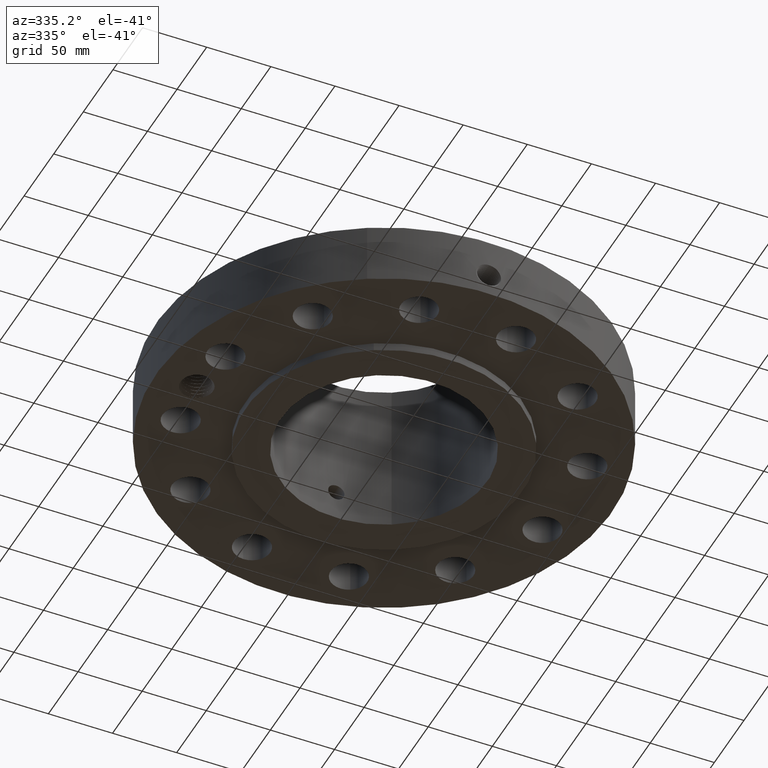
[diagram: clean part render]
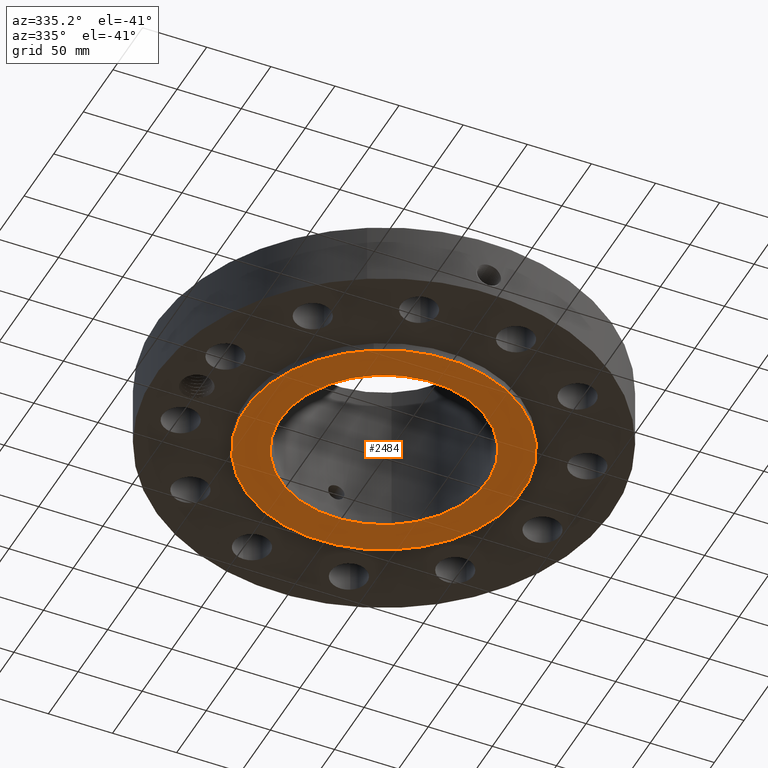
[diagram: same view with one face highlighted and labeled with its STEP entity id]
A machine part, auxiliary view. The second image highlights one B-rep face of the part: STEP entity #2484.
In plain terms, the highlighted planar face has unit normal (0, 0, -1).
Its self-contained STEP definition (entity closure, byte-faithful):
#1302=AXIS2_PLACEMENT_3D('Circle Axis2P3D',#1300,#1301,$) ;
#1328=AXIS2_PLACEMENT_3D('Circle Axis2P3D',#1326,#1327,$) ;
#2460=AXIS2_PLACEMENT_3D('Plane Axis2P3D',#2457,#2458,#2459) ;
#2468=AXIS2_PLACEMENT_3D('Circle Axis2P3D',#2466,#2467,$) ;
#2477=AXIS2_PLACEMENT_3D('Circle Axis2P3D',#2475,#2476,$) ;
#1300=CARTESIAN_POINT('Axis2P3D Location',(0.,0.,2.79741234551E-016)) ;
#1304=CARTESIAN_POINT('Vertex',(2.03755853908,3.72972588805,0.)) ;
#1306=CARTESIAN_POINT('Vertex',(-2.03755853908,-3.72972588805,0.)) ;
#1326=CARTESIAN_POINT('Axis2P3D Location',(0.,0.,2.79741234551E-016)) ;
#2457=CARTESIAN_POINT('Axis2P3D Location',(0.,3.17850000001,0.)) ;
#2466=CARTESIAN_POINT('Axis2P3D Location',(0.,0.,0.)) ;
#2470=CARTESIAN_POINT('Vertex',(1.52385407446,2.78939617298,-7.27327209833E-015)) ;
#2472=CARTESIAN_POINT('Vertex',(-1.52385407446,-2.78939617298,-7.27327209833E-015)) ;
#2475=CARTESIAN_POINT('Axis2P3D Location',(0.,0.,0.)) ;
#1301=DIRECTION('Axis2P3D Direction',(0.,0.,-0.0393700787402)) ;
#1327=DIRECTION('Axis2P3D Direction',(0.,0.,-0.0393700787402)) ;
#2458=DIRECTION('Axis2P3D Direction',(0.,0.,-0.0393700787402)) ;
#2459=DIRECTION('Axis2P3D XDirection',(0.0393700787402,0.,0.)) ;
#2467=DIRECTION('Axis2P3D Direction',(0.,0.,-0.0393700787402)) ;
#2476=DIRECTION('Axis2P3D Direction',(0.,0.,-0.0393700787402)) ;
#2463=ORIENTED_EDGE('',*,*,#1330,.T.) ;
#2464=ORIENTED_EDGE('',*,*,#1308,.T.) ;
#2481=ORIENTED_EDGE('',*,*,#2474,.F.) ;
#2482=ORIENTED_EDGE('',*,*,#2479,.F.) ;
#2483=FACE_BOUND('',#2480,.T.) ;
#2484=ADVANCED_FACE('PartBody',(#2465,#2483),#2461,.T.) ;
#1303=CIRCLE('generated circle',#1302,4.25000000002) ;
#1329=CIRCLE('generated circle',#1328,4.25000000002) ;
#2469=CIRCLE('generated circle',#2468,3.17850000001) ;
#2478=CIRCLE('generated circle',#2477,3.17850000001) ;
#1308=EDGE_CURVE('',#1305,#1307,#1303,.T.) ;
#1330=EDGE_CURVE('',#1307,#1305,#1329,.T.) ;
#2474=EDGE_CURVE('',#2471,#2473,#2469,.T.) ;
#2479=EDGE_CURVE('',#2473,#2471,#2478,.T.) ;
#2462=EDGE_LOOP('',(#2463,#2464)) ;
#2480=EDGE_LOOP('',(#2481,#2482)) ;
#2465=FACE_OUTER_BOUND('',#2462,.T.) ;
#2461=PLANE('',#2460) ;
#1305=VERTEX_POINT('',#1304) ;
#1307=VERTEX_POINT('',#1306) ;
#2471=VERTEX_POINT('',#2470) ;
#2473=VERTEX_POINT('',#2472) ;